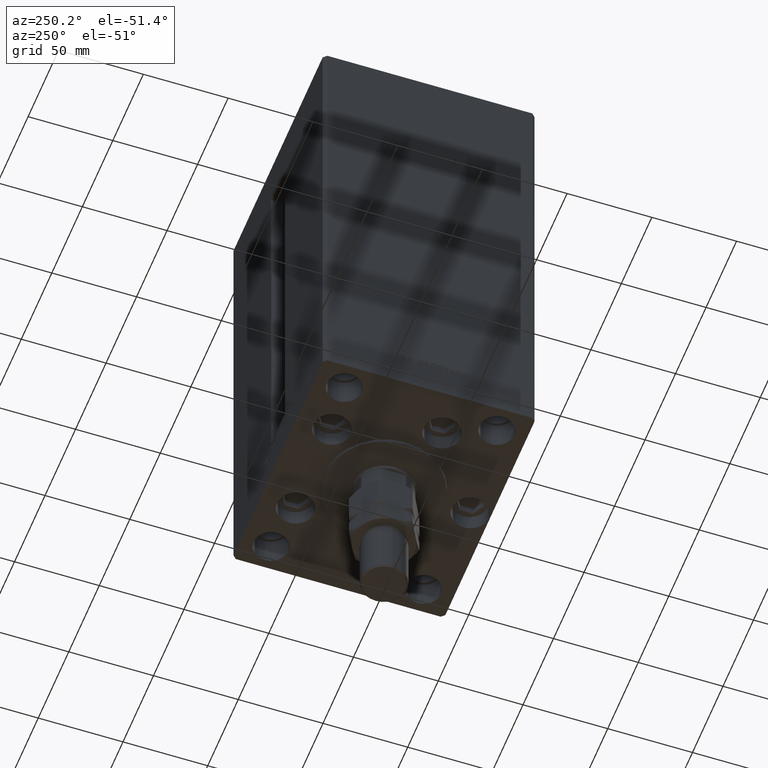
[diagram: clean part render]
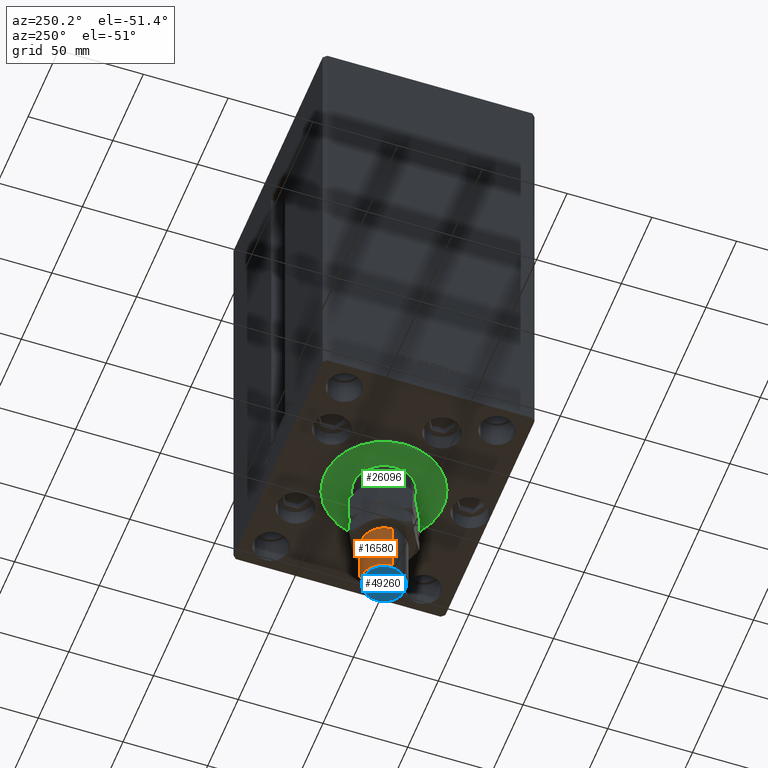
[diagram: same view with three faces highlighted in distinct colors, each labeled with its STEP entity id]
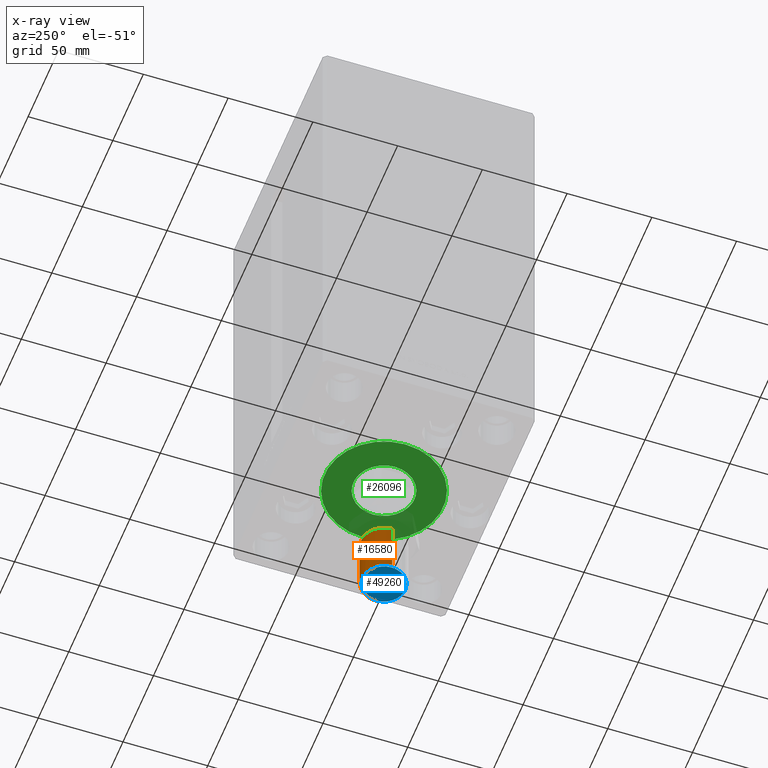
[diagram: x-ray of the same camera — body ghosted, the three highlighted faces saturated]
A machine part, auxiliary view with three faces highlighted in distinct colors.
The next image is the same camera in x-ray (body ghosted, the three faces saturated) — at least one of them is partly hidden behind the body in this view.
Their STEP definitions:

[orange] entity #16580 — the highlighted cylindrical surface (edge-blend (fillet) strip) has radius 13.5 mm, axis along (0, -0, 1).
#589 = EDGE_CURVE ( 'NONE', #19361, #37977, #20273, .T. ) ;
#935 = CARTESIAN_POINT ( 'NONE',  ( 13.50000000000000000, 1.653273178848926867E-15, 37.00000000000000000 ) ) ;
#1012 = DIRECTION ( 'NONE',  ( -0.000000000000000000, -0.000000000000000000, 1.000000000000000000 ) ) ;
#1572 = FACE_OUTER_BOUND ( 'NONE', #39326, .T. ) ;
#1728 = EDGE_CURVE ( 'NONE', #36377, #37977, #31542, .T. ) ;
#2938 = AXIS2_PLACEMENT_3D ( 'NONE', #13303, #1012, #47331 ) ;
#4031 = DIRECTION ( 'NONE',  ( 1.000000000000000000, 0.000000000000000000, 0.000000000000000000 ) ) ;
#5790 = CIRCLE ( 'NONE', #8239, 13.50000000000000000 ) ;
#6488 = CARTESIAN_POINT ( 'NONE',  ( 13.50000000000000000, 1.653273178848926867E-15, 68.99999999999998579 ) ) ;
#8239 = AXIS2_PLACEMENT_3D ( 'NONE', #31914, #39612, #4031 ) ;
#8493 = DIRECTION ( 'NONE',  ( -0.000000000000000000, -0.000000000000000000, -1.000000000000000000 ) ) ;
#8993 = CYLINDRICAL_SURFACE ( 'NONE', #14687, 13.50000000000000000 ) ;
#13199 = ORIENTED_EDGE ( 'NONE', *, *, #589, .F. ) ;
#13303 = CARTESIAN_POINT ( 'NONE',  ( 0.000000000000000000, 0.000000000000000000, 37.00000000000000000 ) ) ;
#14687 = AXIS2_PLACEMENT_3D ( 'NONE', #24358, #8493, #24611 ) ;
#16294 = CARTESIAN_POINT ( 'NONE',  ( 13.50000000000000000, 1.653273178848926867E-15, 70.00000000000000000 ) ) ;
#16580 = ADVANCED_FACE ( 'NONE', ( #1572 ), #8993, .T. ) ;
#17966 = CARTESIAN_POINT ( 'NONE',  ( -13.50000000000000000, 0.000000000000000000, 37.00000000000000000 ) ) ;
#19361 = VERTEX_POINT ( 'NONE', #34604 ) ;
#20273 = LINE ( 'NONE', #23857, #37967 ) ;
#20326 = ORIENTED_EDGE ( 'NONE', *, *, #42105, .T. ) ;
#20637 = DIRECTION ( 'NONE',  ( -0.000000000000000000, -0.000000000000000000, -1.000000000000000000 ) ) ;
#23857 = CARTESIAN_POINT ( 'NONE',  ( -13.50000000000000000, 0.000000000000000000, 70.00000000000000000 ) ) ;
#24358 = CARTESIAN_POINT ( 'NONE',  ( 0.000000000000000000, 0.000000000000000000, 70.00000000000000000 ) ) ;
#24611 = DIRECTION ( 'NONE',  ( -1.000000000000000000, 0.000000000000000000, 0.000000000000000000 ) ) ;
#30774 = VERTEX_POINT ( 'NONE', #6488 ) ;
#31542 = CIRCLE ( 'NONE', #2938, 13.50000000000000000 ) ;
#31914 = CARTESIAN_POINT ( 'NONE',  ( 0.000000000000000000, 0.000000000000000000, 68.99999999999998579 ) ) ;
#34604 = CARTESIAN_POINT ( 'NONE',  ( -13.50000000000000000, 0.000000000000000000, 68.99999999999998579 ) ) ;
#36377 = VERTEX_POINT ( 'NONE', #935 ) ;
#37104 = EDGE_CURVE ( 'NONE', #19361, #30774, #5790, .T. ) ;
#37967 = VECTOR ( 'NONE', #47881, 1000.000000000000000 ) ;
#37977 = VERTEX_POINT ( 'NONE', #17966 ) ;
#39326 = EDGE_LOOP ( 'NONE', ( #40473, #20326, #39531, #13199 ) ) ;
#39531 = ORIENTED_EDGE ( 'NONE', *, *, #1728, .T. ) ;
#39612 = DIRECTION ( 'NONE',  ( 0.000000000000000000, 0.000000000000000000, -1.000000000000000000 ) ) ;
#40473 = ORIENTED_EDGE ( 'NONE', *, *, #37104, .T. ) ;
#42105 = EDGE_CURVE ( 'NONE', #30774, #36377, #47494, .T. ) ;
#46005 = VECTOR ( 'NONE', #20637, 1000.000000000000000 ) ;
#47331 = DIRECTION ( 'NONE',  ( 1.000000000000000000, 0.000000000000000000, 0.000000000000000000 ) ) ;
#47494 = LINE ( 'NONE', #16294, #46005 ) ;
#47881 = DIRECTION ( 'NONE',  ( -0.000000000000000000, -0.000000000000000000, -1.000000000000000000 ) ) ;

[blue] entity #49260 — the highlighted planar face has unit normal (0, 0, -1).
#941 = PLANE ( 'NONE',  #41261 ) ;
#3457 = ORIENTED_EDGE ( 'NONE', *, *, #6254, .T. ) ;
#4291 = DIRECTION ( 'NONE',  ( 1.000000000000000000, 0.000000000000000000, 0.000000000000000000 ) ) ;
#6254 = EDGE_CURVE ( 'NONE', #31788, #27419, #30001, .T. ) ;
#6571 = CARTESIAN_POINT ( 'NONE',  ( 12.49999999999999467, 1.592040838891558898E-15, 70.00000000000000000 ) ) ;
#8386 = DIRECTION ( 'NONE',  ( 0.000000000000000000, 0.000000000000000000, 1.000000000000000000 ) ) ;
#8598 = EDGE_CURVE ( 'NONE', #27419, #31788, #18490, .T. ) ;
#12462 = CARTESIAN_POINT ( 'NONE',  ( 0.000000000000000000, 0.000000000000000000, 70.00000000000000000 ) ) ;
#14476 = ORIENTED_EDGE ( 'NONE', *, *, #8598, .T. ) ;
#18490 = CIRCLE ( 'NONE', #50363, 12.49999999999999467 ) ;
#23752 = CARTESIAN_POINT ( 'NONE',  ( 0.000000000000000000, 0.000000000000000000, 70.00000000000000000 ) ) ;
#25018 = CARTESIAN_POINT ( 'NONE',  ( 0.000000000000000000, 0.000000000000000000, 70.00000000000000000 ) ) ;
#27419 = VERTEX_POINT ( 'NONE', #6571 ) ;
#27827 = FACE_OUTER_BOUND ( 'NONE', #47362, .T. ) ;
#28349 = AXIS2_PLACEMENT_3D ( 'NONE', #23752, #8386, #4291 ) ;
#30001 = CIRCLE ( 'NONE', #28349, 12.49999999999999467 ) ;
#31788 = VERTEX_POINT ( 'NONE', #40053 ) ;
#32963 = DIRECTION ( 'NONE',  ( 1.000000000000000000, 0.000000000000000000, 0.000000000000000000 ) ) ;
#36010 = DIRECTION ( 'NONE',  ( 0.000000000000000000, 0.000000000000000000, 1.000000000000000000 ) ) ;
#38857 = DIRECTION ( 'NONE',  ( 1.000000000000000000, 0.000000000000000000, -0.000000000000000000 ) ) ;
#40053 = CARTESIAN_POINT ( 'NONE',  ( -12.49999999999999467, 0.000000000000000000, 70.00000000000000000 ) ) ;
#40123 = DIRECTION ( 'NONE',  ( 0.000000000000000000, 0.000000000000000000, 1.000000000000000000 ) ) ;
#41261 = AXIS2_PLACEMENT_3D ( 'NONE', #12462, #36010, #38857 ) ;
#47362 = EDGE_LOOP ( 'NONE', ( #3457, #14476 ) ) ;
#49260 = ADVANCED_FACE ( 'NONE', ( #27827 ), #941, .T. ) ;
#50363 = AXIS2_PLACEMENT_3D ( 'NONE', #25018, #40123, #32963 ) ;

[green] entity #26096 — the highlighted planar face has unit normal (0, 0, -1).
#165 = CARTESIAN_POINT ( 'NONE',  ( -18.00000000000000000, -4.734529665441992555E-15, 2.000000000000000000 ) ) ;
#255 = PLANE ( 'NONE',  #35315 ) ;
#1917 = CARTESIAN_POINT ( 'NONE',  ( 0.000000000000000000, -6.938893903907228378E-15, 2.000000000000000000 ) ) ;
#3242 = DIRECTION ( 'NONE',  ( 1.000000000000000000, 0.000000000000000000, 0.000000000000000000 ) ) ;
#5655 = ORIENTED_EDGE ( 'NONE', *, *, #23224, .T. ) ;
#5656 = ORIENTED_EDGE ( 'NONE', *, *, #7266, .F. ) ;
#6273 = AXIS2_PLACEMENT_3D ( 'NONE', #34467, #50057, #3242 ) ;
#6534 = EDGE_CURVE ( 'NONE', #12010, #43182, #26718, .T. ) ;
#7266 = EDGE_CURVE ( 'NONE', #14182, #24486, #11183, .T. ) ;
#7427 = CARTESIAN_POINT ( 'NONE',  ( 0.000000000000000000, -6.938893903907228378E-15, 2.000000000000000000 ) ) ;
#7759 = CARTESIAN_POINT ( 'NONE',  ( 35.00000000000000711, -2.652630106891490698E-15, 2.000000000000000000 ) ) ;
#7784 = EDGE_LOOP ( 'NONE', ( #5656, #16871 ) ) ;
#11183 = CIRCLE ( 'NONE', #6273, 18.00000000000000000 ) ;
#11274 = DIRECTION ( 'NONE',  ( 1.000000000000000000, 0.000000000000000000, -0.000000000000000000 ) ) ;
#12010 = VERTEX_POINT ( 'NONE', #7759 ) ;
#12420 = EDGE_CURVE ( 'NONE', #24486, #14182, #36572, .T. ) ;
#13944 = DIRECTION ( 'NONE',  ( 1.000000000000000000, 0.000000000000000000, 0.000000000000000000 ) ) ;
#14182 = VERTEX_POINT ( 'NONE', #29790 ) ;
#14761 = AXIS2_PLACEMENT_3D ( 'NONE', #19740, #46850, #20494 ) ;
#14877 = FACE_BOUND ( 'NONE', #7784, .T. ) ;
#15831 = EDGE_LOOP ( 'NONE', ( #5655, #29574 ) ) ;
#16871 = ORIENTED_EDGE ( 'NONE', *, *, #12420, .F. ) ;
#16952 = AXIS2_PLACEMENT_3D ( 'NONE', #31244, #32248, #31741 ) ;
#19740 = CARTESIAN_POINT ( 'NONE',  ( 0.000000000000000000, -6.938893903907228378E-15, 2.000000000000000000 ) ) ;
#20494 = DIRECTION ( 'NONE',  ( 1.000000000000000000, 0.000000000000000000, 0.000000000000000000 ) ) ;
#23224 = EDGE_CURVE ( 'NONE', #43182, #12010, #36826, .T. ) ;
#23451 = AXIS2_PLACEMENT_3D ( 'NONE', #1917, #40817, #13944 ) ;
#24486 = VERTEX_POINT ( 'NONE', #165 ) ;
#26096 = ADVANCED_FACE ( 'NONE', ( #14877, #34816 ), #255, .T. ) ;
#26718 = CIRCLE ( 'NONE', #23451, 35.00000000000000711 ) ;
#27505 = CARTESIAN_POINT ( 'NONE',  ( -35.00000000000000711, -6.938893903907228378E-15, 2.000000000000000000 ) ) ;
#29574 = ORIENTED_EDGE ( 'NONE', *, *, #6534, .T. ) ;
#29790 = CARTESIAN_POINT ( 'NONE',  ( 18.00000000000000000, -6.938893903907228378E-15, 2.000000000000000000 ) ) ;
#31244 = CARTESIAN_POINT ( 'NONE',  ( 0.000000000000000000, -6.938893903907228378E-15, 2.000000000000000000 ) ) ;
#31741 = DIRECTION ( 'NONE',  ( 1.000000000000000000, 0.000000000000000000, 0.000000000000000000 ) ) ;
#32248 = DIRECTION ( 'NONE',  ( 0.000000000000000000, 0.000000000000000000, 1.000000000000000000 ) ) ;
#34467 = CARTESIAN_POINT ( 'NONE',  ( 0.000000000000000000, -6.938893903907228378E-15, 2.000000000000000000 ) ) ;
#34570 = DIRECTION ( 'NONE',  ( 0.000000000000000000, 0.000000000000000000, 1.000000000000000000 ) ) ;
#34816 = FACE_OUTER_BOUND ( 'NONE', #15831, .T. ) ;
#35315 = AXIS2_PLACEMENT_3D ( 'NONE', #7427, #34570, #11274 ) ;
#36572 = CIRCLE ( 'NONE', #16952, 18.00000000000000000 ) ;
#36826 = CIRCLE ( 'NONE', #14761, 35.00000000000000711 ) ;
#40817 = DIRECTION ( 'NONE',  ( 0.000000000000000000, 0.000000000000000000, 1.000000000000000000 ) ) ;
#43182 = VERTEX_POINT ( 'NONE', #27505 ) ;
#46850 = DIRECTION ( 'NONE',  ( 0.000000000000000000, 0.000000000000000000, 1.000000000000000000 ) ) ;
#50057 = DIRECTION ( 'NONE',  ( 0.000000000000000000, 0.000000000000000000, 1.000000000000000000 ) ) ;